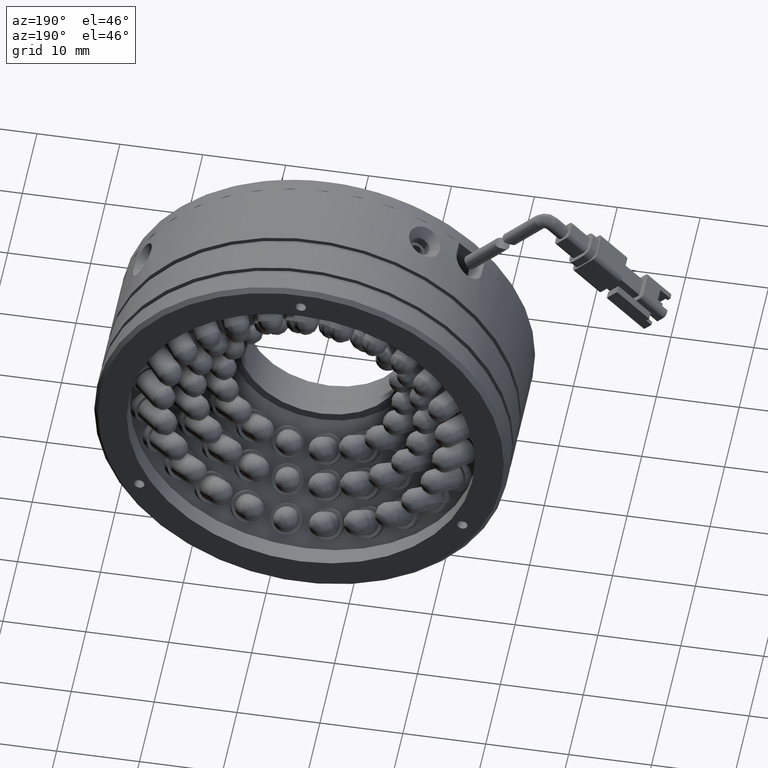
[diagram: clean part render]
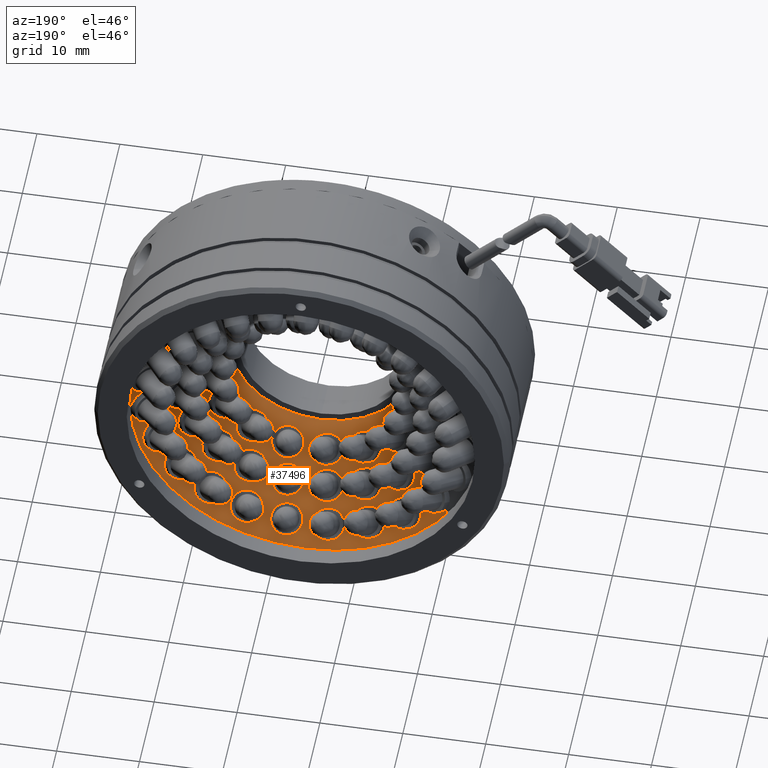
[diagram: same view with one face highlighted and labeled with its STEP entity id]
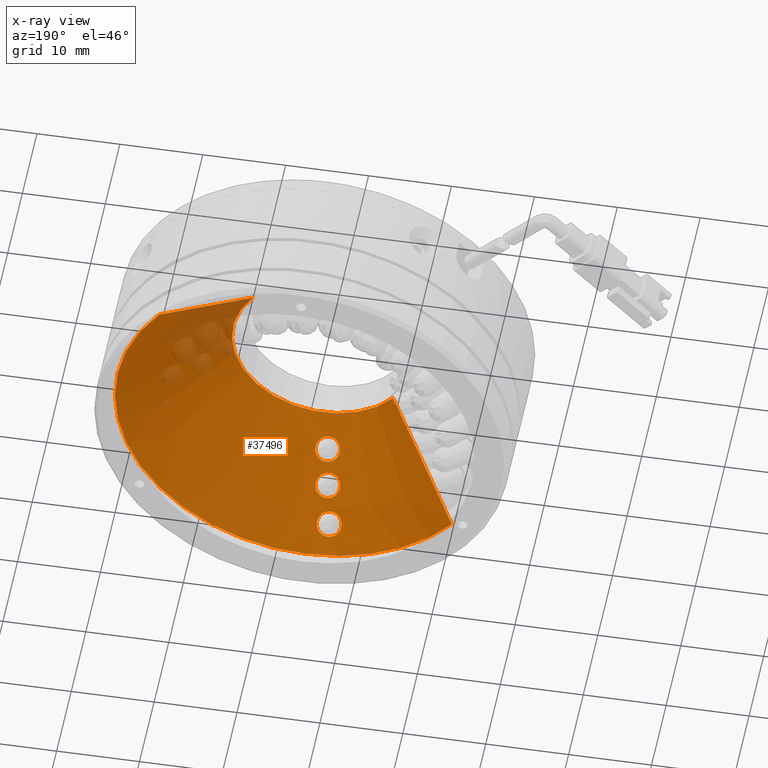
[diagram: x-ray of the same camera — body ghosted, the highlighted face saturated]
A machine part, auxiliary view. The second image highlights one B-rep face of the part: STEP entity #37496.
The next image is the same camera in x-ray: the body ghosted, the highlighted face saturated — about 9% of this face is hidden behind the body in this view.
In plain terms, the highlighted conical surface has half-angle 45 deg.
Its self-contained STEP definition (entity closure, byte-faithful):
#1223 = CARTESIAN_POINT ( 'NONE',  ( -6.903893299589653600, 9.522866943959540400, -16.32003643880054300 ) ) ;
#1410 = CARTESIAN_POINT ( 'NONE',  ( -4.685688376004625500, 5.981003522325812200, -13.01356985442074800 ) ) ;
#2414 = FACE_BOUND ( 'NONE', #51849, .T. ) ;
#2573 = CIRCLE ( 'NONE', #27999, 23.00000000000000400 ) ;
#2798 = CARTESIAN_POINT ( 'NONE',  ( -4.025818638713078100, 15.95107685953530200, 3.557538378468061400E-016 ) ) ;
#2953 = CARTESIAN_POINT ( 'NONE',  ( -5.179058073715905800, 13.84829117187733000, -20.86544870307665900 ) ) ;
#3049 = CARTESIAN_POINT ( 'NONE',  ( -3.861347638160191700, 7.555156384415581300, -14.60326966407591300 ) ) ;
#3128 = CARTESIAN_POINT ( 'NONE',  ( -3.729495263404871300, 7.370827555104668200, -14.41676769696985400 ) ) ;
#3294 = EDGE_CURVE ( 'NONE', #28536, #39346, #29710, .T. ) ;
#3415 = CARTESIAN_POINT ( 'NONE',  ( -7.691747395787854400, 12.84791317645692400, -19.55623067914739400 ) ) ;
#4020 = DIRECTION ( 'NONE',  ( -0.0000000000000000000, -1.000000000000000000, 0.0000000000000000000 ) ) ;
#4235 = CARTESIAN_POINT ( 'NONE',  ( -4.634419998892037800, 10.78581341164830000, -17.82475205392198300 ) ) ;
#4446 = CARTESIAN_POINT ( 'NONE',  ( -4.740724137508205000, 9.189187165328892300, -16.22236531554236200 ) ) ;
#5450 = FACE_BOUND ( 'NONE', #60594, .T. ) ;
#5840 = CARTESIAN_POINT ( 'NONE',  ( -4.899968689079491600, 9.111338379033485400, -16.13684432751204400 ) ) ;
#6047 = CARTESIAN_POINT ( 'NONE',  ( -7.048488318377979000, 9.716351337790285900, -16.49057478235289800 ) ) ;
#6210 = CARTESIAN_POINT ( 'NONE',  ( -12.46778843534765400, 3.951076859535327800, -7.052173136892588600 ) ) ;
#6250 = CARTESIAN_POINT ( 'NONE',  ( -4.349601731347223500, 7.893689303797999400, -14.93910409523804200 ) ) ;
#6360 = VERTEX_POINT ( 'NONE', #51270 ) ;
#7516 = CARTESIAN_POINT ( 'NONE',  ( -21.67721003167629600, 15.95107685953530200, -14.74545292259360700 ) ) ;
#7572 = CARTESIAN_POINT ( 'NONE',  ( -7.182339294280923000, 14.25383648078230600, -21.06780059616423300 ) ) ;
#7782 = CARTESIAN_POINT ( 'NONE',  ( -5.034830033245643900, 13.66221305613546400, -20.68658524585803000 ) ) ;
#7839 = DIRECTION ( 'NONE',  ( 0.7674517996940528600, 0.0000000000000000000, 0.6411066488084172800 ) ) ;
#8037 = CARTESIAN_POINT ( 'NONE',  ( -5.811551396878159400, 12.29217952392466600, -19.25869718014167000 ) ) ;
#8237 = CARTESIAN_POINT ( 'NONE',  ( -7.816981386134939300, 13.04548789993847700, -19.73354110729124900 ) ) ;
#8322 = VERTEX_POINT ( 'NONE', #24359 ) ;
#9092 = CARTESIAN_POINT ( 'NONE',  ( -4.395549254972055000, 10.56205802471552800, -17.60715528745121000 ) ) ;
#9646 = CARTESIAN_POINT ( 'NONE',  ( -4.740724137508205000, 9.189187165328892300, -16.22236531554236200 ) ) ;
#9874 = EDGE_CURVE ( 'NONE', #39346, #28536, #12327, .T. ) ;
#10079 = CARTESIAN_POINT ( 'NONE',  ( -3.750905510806368200, 6.553187215181890400, -13.59970543286856200 ) ) ;
#10537 = ORIENTED_EDGE ( 'NONE', *, *, #40616, .F. ) ;
#10728 = CARTESIAN_POINT ( 'NONE',  ( -5.165369510792410200, 9.029476047647220200, -16.03825150704538800 ) ) ;
#10929 = CARTESIAN_POINT ( 'NONE',  ( -7.139871919112349200, 9.920532030273861300, -16.68128631574122900 ) ) ;
#11325 = CARTESIAN_POINT ( 'NONE',  ( -3.681187841003301700, 6.687688799943589200, -13.73231446352466800 ) ) ;
#12254 = EDGE_CURVE ( 'NONE', #37312, #15576, #51181, .T. ) ;
#12327 = B_SPLINE_CURVE_WITH_KNOTS ( 'NONE', 3,
 ( #46548, #52283, #46464, #46393, #46330, #46280, #46270, #46186, #46116, #46077, #46062, #45976, #45907, #45844, #45762, #45656, #45568, #45497, #45369, #45296, #45248, #45169, #45094, #44974, #44967, #44894 ),
 .UNSPECIFIED., .F., .F.,
 ( 4, 2, 2, 2, 2, 2, 2, 2, 2, 2, 2, 2, 4 ),
 ( 0.004690386888072137900, 0.004983526944766753800, 0.005276667001461370600, 0.005569807058155986500, 0.005862947114850603300, 0.006449227228239836800, 0.007035507341629071300, 0.007328647398323687200, 0.007621787455018302200, 0.007914927511712917300, 0.008208067568407532300, 0.008794347681796764100, 0.009380627795185994200 ),
 .UNSPECIFIED. ) ;
#12455 = CARTESIAN_POINT ( 'NONE',  ( -6.917501298288839500, 14.32383212186383200, -21.17645327258093600 ) ) ;
#12500 = DIRECTION ( 'NONE',  ( 0.0000000000000000000, 1.000000000000000000, 0.0000000000000000000 ) ) ;
#12668 = CARTESIAN_POINT ( 'NONE',  ( -4.944256700637084600, 13.46250445146131500, -20.49086910700983900 ) ) ;
#12808 = AXIS2_PLACEMENT_3D ( 'NONE', #2798, #12500, #7839 ) ;
#12910 = CARTESIAN_POINT ( 'NONE',  ( -6.092354303274158100, 12.24201041840192000, -19.18016701119013200 ) ) ;
#13110 = CARTESIAN_POINT ( 'NONE',  ( -7.889027374870192200, 13.25335185872082800, -19.93133246141935200 ) ) ;
#13494 = ORIENTED_EDGE ( 'NONE', *, *, #12254, .F. ) ;
#13739 = CARTESIAN_POINT ( 'NONE',  ( -6.284999043038574500, 11.05108123781996300, -17.95868713070608200 ) ) ;
#13842 = CARTESIAN_POINT ( 'NONE',  ( -5.914328558703435800, 6.151117880901672700, -13.06424943300809200 ) ) ;
#13952 = CARTESIAN_POINT ( 'NONE',  ( -4.268137825042720700, 10.37398959796971500, -17.42124827584677900 ) ) ;
#14064 = CARTESIAN_POINT ( 'NONE',  ( -4.043332329046160500, 7.719669205247742900, -14.76875533396046200 ) ) ;
#14506 = VECTOR ( 'NONE', #59906, 1000.000000000000100 ) ;
#14658 = EDGE_LOOP ( 'NONE', ( #13494, #51165, #45352, #10537 ) ) ;
#15066 = ORIENTED_EDGE ( 'NONE', *, *, #44474, .T. ) ;
#15095 = VERTEX_POINT ( 'NONE', #46176 ) ;
#15099 = CARTESIAN_POINT ( 'NONE',  ( -3.964649588876593800, 6.318700729867984500, -13.36765002483724300 ) ) ;
#15211 = CARTESIAN_POINT ( 'NONE',  ( 13.62557275425014500, 15.95107685953530200, 14.74545292259360500 ) ) ;
#15252 = FACE_OUTER_BOUND ( 'NONE', #14658, .T. ) ;
#15550 = CARTESIAN_POINT ( 'NONE',  ( -5.449711756166301800, 8.989168016935435500, -15.97505881468981700 ) ) ;
#15576 = VERTEX_POINT ( 'NONE', #23381 ) ;
#15741 = CARTESIAN_POINT ( 'NONE',  ( -7.175508279177225100, 10.12898589083178900, -16.88668205550550300 ) ) ;
#16329 = CARTESIAN_POINT ( 'NONE',  ( -4.974299580456101200, 5.940214520695897200, -12.95591908886681100 ) ) ;
#17260 = CARTESIAN_POINT ( 'NONE',  ( -6.633580241132909400, 14.35608177515700300, -21.24578606195403900 ) ) ;
#17470 = CARTESIAN_POINT ( 'NONE',  ( -4.909887701304897200, 13.25482332272634000, -20.28449084874745300 ) ) ;
#17718 = CARTESIAN_POINT ( 'NONE',  ( -6.382873161934800700, 12.23475645432764800, -19.13933654430377400 ) ) ;
#17745 = EDGE_CURVE ( 'NONE', #37312, #8322, #43552, .T. ) ;
#17916 = CARTESIAN_POINT ( 'NONE',  ( -7.904191398735573400, 13.45986948159289100, -20.13875325477247800 ) ) ;
#18552 = CARTESIAN_POINT ( 'NONE',  ( -6.004876285155424900, 11.09967461808836500, -18.04062655658942700 ) ) ;
#18767 = CARTESIAN_POINT ( 'NONE',  ( -4.194276189355554700, 10.17099209931373600, -17.21909309275463700 ) ) ;
#20321 = VECTOR ( 'NONE', #48682, 1000.000000000000100 ) ;
#20366 = CARTESIAN_POINT ( 'NONE',  ( -5.744197326242289000, 8.992150400645158500, -15.94905816358078000 ) ) ;
#20575 = CARTESIAN_POINT ( 'NONE',  ( -7.143160298824717800, 10.40178202279046700, -17.17007439156078200 ) ) ;
#22106 = CARTESIAN_POINT ( 'NONE',  ( -6.339314330932728200, 14.34961009787408900, -21.27332154806864400 ) ) ;
#22318 = CARTESIAN_POINT ( 'NONE',  ( -4.944517135282434400, 12.97777623459180200, -20.00563642382854500 ) ) ;
#22468 = ORIENTED_EDGE ( 'NONE', *, *, #47111, .T. ) ;
#22569 = CARTESIAN_POINT ( 'NONE',  ( -6.772788059882447700, 12.28468654918450800, -19.13842504088981800 ) ) ;
#22783 = CARTESIAN_POINT ( 'NONE',  ( -7.811342813239889400, 13.79037900606676100, -20.49292048607776100 ) ) ;
#23209 = CARTESIAN_POINT ( 'NONE',  ( -6.539224784503248100, 10.96671950923384600, -17.83964942618959500 ) ) ;
#23381 = CARTESIAN_POINT ( 'NONE',  ( -21.67721003167629600, 15.95107685953529900, -14.74545292259360500 ) ) ;
#23417 = CARTESIAN_POINT ( 'NONE',  ( -5.714283992583450100, 11.10989379305590900, -18.08041276295890000 ) ) ;
#23632 = CARTESIAN_POINT ( 'NONE',  ( -4.177817503631191100, 9.963989893164200100, -17.01223779730262100 ) ) ;
#24299 = VERTEX_POINT ( 'NONE', #9646 ) ;
#24359 = CARTESIAN_POINT ( 'NONE',  ( 4.416151157921502700, 3.951076859535327800, 7.052173136892588600 ) ) ;
#24626 = ORIENTED_EDGE ( 'NONE', *, *, #3294, .T. ) ;
#25222 = CARTESIAN_POINT ( 'NONE',  ( -6.226300963865360100, 9.086347687198502500, -15.98532769656492100 ) ) ;
#25313 = DIRECTION ( 'NONE',  ( -0.0000000000000000000, -1.000000000000000000, 0.0000000000000000000 ) ) ;
#25431 = CARTESIAN_POINT ( 'NONE',  ( -6.896383262260448200, 10.75552505013300800, -17.57188984345805900 ) ) ;
#26067 = VERTEX_POINT ( 'NONE', #39052 ) ;
#26934 = CARTESIAN_POINT ( 'NONE',  ( -5.857081792587138100, 14.25930137937491400, -21.23003282243253400 ) ) ;
#27156 = CARTESIAN_POINT ( 'NONE',  ( -5.195627994254310900, 12.60747210206838200, -19.62181936542534200 ) ) ;
#27225 = B_SPLINE_CURVE_WITH_KNOTS ( 'NONE', 3,
 ( #56568, #23209, #42441, #13739, #47232, #18552, #52015, #23417, #56769, #28224, #61566, #33042, #4235, #37842, #9092, #42644, #13952, #47425, #18767, #52222, #23632, #56989, #28442, #61780, #33252, #4446 ),
 .UNSPECIFIED., .F., .F.,
 ( 4, 2, 2, 2, 2, 2, 2, 2, 2, 2, 2, 2, 4 ),
 ( 5.818439421673296400E-018, 0.0002931138311211362300, 0.0005862276622422667000, 0.0008793414933633971800, 0.001172455324484527600, 0.001758682986726786100, 0.002344910648969044700, 0.002638024480090177800, 0.002931138311211311700, 0.003224252142332445200, 0.003517365973453578800, 0.004103593635695835400, 0.004689821297938091100 ),
 .UNSPECIFIED. ) ;
#27407 = CARTESIAN_POINT ( 'NONE',  ( -7.303326741353038700, 12.50228595246581900, -19.27519288934959400 ) ) ;
#27452 = CARTESIAN_POINT ( 'NONE',  ( -4.187019638051451100, 7.813846326285527300, -14.86206753549026200 ) ) ;
#27623 = CARTESIAN_POINT ( 'NONE',  ( -7.495278097952261300, 14.11081389004710800, -20.87403833574545700 ) ) ;
#27999 = AXIS2_PLACEMENT_3D ( 'NONE', #32816, #4020, #37606 ) ;
#28224 = CARTESIAN_POINT ( 'NONE',  ( -5.323228146817144500, 11.07022420569604100, -18.07366828434828000 ) ) ;
#28442 = CARTESIAN_POINT ( 'NONE',  ( -4.269667697302464800, 9.621697030982149500, -16.66911906794521400 ) ) ;
#28536 = VERTEX_POINT ( 'NONE', #6250 ) ;
#29173 = CARTESIAN_POINT ( 'NONE',  ( -4.097888079640067200, 6.216906769189755300, -13.26580152452418000 ) ) ;
#29588 = CARTESIAN_POINT ( 'NONE',  ( -3.620014589097691800, 6.961450653314347600, -14.00452142078471100 ) ) ;
#29710 = B_SPLINE_CURVE_WITH_KNOTS ( 'NONE', 3,
 ( #59766, #51929, #27452, #14064, #52767, #3049, #32327, #3128, #54802, #60677, #29588, #11325, #10079, #46525, #15099, #29173, #49405, #44006, #43807, #30421, #1410, #16329, #53604, #33568, #51241, #37526 ),
 .UNSPECIFIED., .F., .F.,
 ( 4, 2, 2, 2, 2, 2, 2, 2, 2, 2, 2, 2, 4 ),
 ( 3.004629197474318500E-018, 0.0002931491805045106800, 0.0005862983610090197300, 0.0008794475415135286800, 0.001172596722018037700, 0.001758895083027053900, 0.002345193444036069800, 0.002638342624540578700, 0.002931491805045087900, 0.003224640985549597200, 0.003517790166054106500, 0.004104088527063122000, 0.004690386888072137900 ),
 .UNSPECIFIED. ) ;
#29808 = CARTESIAN_POINT ( 'NONE',  ( -4.740724137508205000, 9.189187165328892300, -16.22236531554236200 ) ) ;
#30024 = CARTESIAN_POINT ( 'NONE',  ( -6.720908215024331300, 9.346690874583050100, -16.17292048971470200 ) ) ;
#30238 = CARTESIAN_POINT ( 'NONE',  ( -6.616068230969491800, 10.92863630018029000, -17.78997612397888500 ) ) ;
#30421 = CARTESIAN_POINT ( 'NONE',  ( -4.593292679828296700, 6.001656313802270000, -13.03854516760922900 ) ) ;
#31555 = CARTESIAN_POINT ( 'NONE',  ( -7.341192347505915100, 14.18542060189126100, -20.97392789487884800 ) ) ;
#31761 = CARTESIAN_POINT ( 'NONE',  ( -5.361968637347000100, 14.01568697477283900, -21.02250892555364800 ) ) ;
#31982 = CARTESIAN_POINT ( 'NONE',  ( -5.478562578626906500, 12.42262391849485000, -19.41727787086335200 ) ) ;
#32204 = CARTESIAN_POINT ( 'NONE',  ( -7.637815380809919400, 12.78416796394786600, -19.50147588679976400 ) ) ;
#32327 = CARTESIAN_POINT ( 'NONE',  ( -3.811853613629525600, 7.495923892524334800, -14.54333463927256200 ) ) ;
#32816 = CARTESIAN_POINT ( 'NONE',  ( -4.025818638713078100, 15.95107685953529900, 3.557538378468061400E-016 ) ) ;
#33042 = CARTESIAN_POINT ( 'NONE',  ( -4.788808131639187900, 10.87983440325465700, -17.91330165744984300 ) ) ;
#33252 = CARTESIAN_POINT ( 'NONE',  ( -4.586258343210755800, 9.273512190933143300, -16.31357935765262100 ) ) ;
#33568 = CARTESIAN_POINT ( 'NONE',  ( -5.560131222107171000, 6.006106195583790000, -12.96597096869272600 ) ) ;
#34537 = EDGE_LOOP ( 'NONE', ( #41556, #24626 ) ) ;
#34790 = CARTESIAN_POINT ( 'NONE',  ( -6.958264517059580700, 9.586293126136068200, -16.37474707348661700 ) ) ;
#35392 = CARTESIAN_POINT ( 'NONE',  ( -7.341192347505915100, 14.18542060189126100, -20.97392789487884800 ) ) ;
#36013 = EDGE_CURVE ( 'NONE', #15095, #60842, #60652, .T. ) ;
#36557 = CARTESIAN_POINT ( 'NONE',  ( -5.124766130462307800, 13.78764971614531200, -20.80761479347214800 ) ) ;
#36804 = CARTESIAN_POINT ( 'NONE',  ( -5.638163354904353500, 12.34778622067803300, -19.32978750122058600 ) ) ;
#37006 = CARTESIAN_POINT ( 'NONE',  ( -7.781089173935653100, 12.97845804725406700, -19.67218943206584600 ) ) ;
#37312 = VERTEX_POINT ( 'NONE', #6210 ) ;
#37496 = ADVANCED_FACE ( 'NONE', ( #15252, #5450, #2414, #51913 ), #45924, .F. ) ;
#37526 = CARTESIAN_POINT ( 'NONE',  ( -5.914328558703435800, 6.151117880901672700, -13.06424943300809200 ) ) ;
#37606 = DIRECTION ( 'NONE',  ( -0.7674517996940528600, 0.0000000000000000000, -0.6411066488084172800 ) ) ;
#37842 = CARTESIAN_POINT ( 'NONE',  ( -4.450280040122621900, 10.62170077097710100, -17.66562680227806200 ) ) ;
#39052 = CARTESIAN_POINT ( 'NONE',  ( 13.62557275425014100, 15.95107685953529900, 14.74545292259360400 ) ) ;
#39092 = ORIENTED_EDGE ( 'NONE', *, *, #36013, .T. ) ;
#39346 = VERTEX_POINT ( 'NONE', #13842 ) ;
#39398 = CARTESIAN_POINT ( 'NONE',  ( -5.073141678877259000, 9.052635897721165400, -16.06770514703533700 ) ) ;
#39612 = CARTESIAN_POINT ( 'NONE',  ( -7.084831866414376100, 9.783218602151924500, -16.55184780939822500 ) ) ;
#40616 = EDGE_CURVE ( 'NONE', #15576, #26067, #2573, .T. ) ;
#41158 = CARTESIAN_POINT ( 'NONE',  ( -7.009546017064594500, 14.30433478404197300, -21.14396538141120300 ) ) ;
#41374 = CARTESIAN_POINT ( 'NONE',  ( -4.998702422038393300, 13.59721591329429700, -20.62321842842848700 ) ) ;
#41556 = ORIENTED_EDGE ( 'NONE', *, *, #9874, .T. ) ;
#41622 = CARTESIAN_POINT ( 'NONE',  ( -5.903838642963893200, 12.27060444865603200, -19.22827204373480800 ) ) ;
#41824 = CARTESIAN_POINT ( 'NONE',  ( -7.871105557102841200, 13.18298606640098000, -19.86313477827788200 ) ) ;
#42441 = CARTESIAN_POINT ( 'NONE',  ( -6.457568952500621700, 10.99869016822498600, -17.88326361756545100 ) ) ;
#42644 = CARTESIAN_POINT ( 'NONE',  ( -4.304723488442032700, 10.43830267962468200, -17.48505760391672900 ) ) ;
#43552 = CIRCLE ( 'NONE', #58612, 11.00000000000000200 ) ;
#43807 = CARTESIAN_POINT ( 'NONE',  ( -4.415828525135296400, 6.056331203922434600, -13.09975749785321000 ) ) ;
#44006 = CARTESIAN_POINT ( 'NONE',  ( -4.329891104413355200, 6.090844589834836700, -13.13649363305627900 ) ) ;
#44232 = CARTESIAN_POINT ( 'NONE',  ( -5.353861630901468200, 8.997807585686187400, -15.99196785731877100 ) ) ;
#44448 = CARTESIAN_POINT ( 'NONE',  ( -7.158253402964438900, 9.990865385168083500, -16.74939588264237900 ) ) ;
#44474 = EDGE_CURVE ( 'NONE', #24299, #6360, #57234, .T. ) ;
#44894 = CARTESIAN_POINT ( 'NONE',  ( -4.349601731347223500, 7.893689303797999400, -14.93910409523804200 ) ) ;
#44967 = CARTESIAN_POINT ( 'NONE',  ( -4.518651456789040600, 7.968706219424297500, -15.01047472410963300 ) ) ;
#44974 = CARTESIAN_POINT ( 'NONE',  ( -4.705253792437755300, 8.020602011587062200, -15.05543734126860600 ) ) ;
#45094 = CARTESIAN_POINT ( 'NONE',  ( -5.093706057232754600, 8.075196205175862100, -15.08760550250462500 ) ) ;
#45169 = CARTESIAN_POINT ( 'NONE',  ( -5.291793321887452000, 8.077410811809837600, -15.07452899156407400 ) ) ;
#45248 = CARTESIAN_POINT ( 'NONE',  ( -5.579962724499744700, 8.042254103170488800, -15.01125581370456400 ) ) ;
#45296 = CARTESIAN_POINT ( 'NONE',  ( -5.672139718066612900, 8.024428952528355200, -14.98345749595902300 ) ) ;
#45352 = ORIENTED_EDGE ( 'NONE', *, *, #55468, .T. ) ;
#45369 = CARTESIAN_POINT ( 'NONE',  ( -5.849050287668608100, 7.976913338890924800, -14.91509358230036700 ) ) ;
#45497 = CARTESIAN_POINT ( 'NONE',  ( -5.934648736129017400, 7.946790779813925500, -14.87396905726577000 ) ) ;
#45568 = CARTESIAN_POINT ( 'NONE',  ( -6.092872316076174000, 7.875945094975564100, -14.78127642724456300 ) ) ;
#45656 = CARTESIAN_POINT ( 'NONE',  ( -6.165502152948857200, 7.835444177695964500, -14.72995565782306000 ) ) ;
#45750 = LINE ( 'NONE', #15211, #20321 ) ;
#45762 = CARTESIAN_POINT ( 'NONE',  ( -6.297913681046163800, 7.744096651794418300, -14.61767654086559000 ) ) ;
#45844 = CARTESIAN_POINT ( 'NONE',  ( -6.357782885179418000, 7.692876916236857100, -14.55631337764122100 ) ) ;
#45907 = CARTESIAN_POINT ( 'NONE',  ( -6.510067273110038000, 7.529536534031668900, -14.36574345921322800 ) ) ;
#45924 = CONICAL_SURFACE ( 'NONE', #12808, 23.00000000000001100, 0.7853981633974499400 ) ;
#45950 = CARTESIAN_POINT ( 'NONE',  ( -6.729309891855793400, 14.34964350219729000, -21.22732021972463900 ) ) ;
#45976 = CARTESIAN_POINT ( 'NONE',  ( -6.579117820913783300, 7.403268626111933600, -14.22496196178570700 ) ) ;
#46062 = CARTESIAN_POINT ( 'NONE',  ( -6.639603721603685400, 7.138076129103147600, -13.94425001516212200 ) ) ;
#46077 = CARTESIAN_POINT ( 'NONE',  ( -6.631665271224450800, 6.996395847763239800, -13.80148439171502500 ) ) ;
#46116 = CARTESIAN_POINT ( 'NONE',  ( -6.563344148812915600, 6.789912497842809800, -13.60420676706819300 ) ) ;
#46160 = CARTESIAN_POINT ( 'NONE',  ( -4.926249969561435000, 13.39286589926220500, -20.42194871264576500 ) ) ;
#46176 = CARTESIAN_POINT ( 'NONE',  ( -5.478562578626906500, 12.42262391849485000, -19.41727787086335200 ) ) ;
#46186 = CARTESIAN_POINT ( 'NONE',  ( -6.530737910134528000, 6.720732636155414500, -13.53992871697683500 ) ) ;
#46202 = CARTESIAN_POINT ( 'NONE',  ( -5.555998272092963000, 12.38194365080229700, -19.37069039412338300 ) ) ;
#46270 = CARTESIAN_POINT ( 'NONE',  ( -6.448931618024181100, 6.588503874015825300, -13.42046232718240600 ) ) ;
#46280 = CARTESIAN_POINT ( 'NONE',  ( -6.399770523541186600, 6.524989880930238700, -13.36479520752733000 ) ) ;
#46330 = CARTESIAN_POINT ( 'NONE',  ( -6.284770182950485800, 6.403434282471824400, -13.26142307346583800 ) ) ;
#46393 = CARTESIAN_POINT ( 'NONE',  ( -6.218944797190437700, 6.345719975274926500, -13.21403604200344600 ) ) ;
#46406 = CARTESIAN_POINT ( 'NONE',  ( -6.188167628379267700, 12.23485604907349800, -19.16241105249303800 ) ) ;
#46464 = CARTESIAN_POINT ( 'NONE',  ( -6.076087078202923500, 6.241138606293957600, -13.13111675475556700 ) ) ;
#46525 = CARTESIAN_POINT ( 'NONE',  ( -3.904358701015903300, 6.375236310864766100, -13.42370456314603700 ) ) ;
#46548 = CARTESIAN_POINT ( 'NONE',  ( -5.914328558703435800, 6.151117880901672700, -13.06424943300809200 ) ) ;
#46616 = CARTESIAN_POINT ( 'NONE',  ( -7.905389856049818100, 13.39140542293038100, -20.06878133403602500 ) ) ;
#47111 = EDGE_CURVE ( 'NONE', #6360, #24299, #27225, .T. ) ;
#47232 = CARTESIAN_POINT ( 'NONE',  ( -6.193021898589296200, 11.07162622571334500, -17.99074246614024000 ) ) ;
#47425 = CARTESIAN_POINT ( 'NONE',  ( -4.212756499934035200, 10.24029482468120900, -17.28822818764328800 ) ) ;
#48682 = DIRECTION ( 'NONE',  ( 0.5426703717974856700, 0.7071067811865463500, 0.4533308588362150400 ) ) ;
#49011 = CARTESIAN_POINT ( 'NONE',  ( -5.644586924887197400, 8.986225245584089200, -15.95353192142520300 ) ) ;
#49221 = CARTESIAN_POINT ( 'NONE',  ( -7.174746833164094000, 10.19754773154868500, -16.95657835475900700 ) ) ;
#49405 = CARTESIAN_POINT ( 'NONE',  ( -4.170922154121695000, 6.171256379992454900, -13.21962633936507600 ) ) ;
#50745 = CARTESIAN_POINT ( 'NONE',  ( -6.438877148668146000, 14.35617044011891300, -21.26886904253871400 ) ) ;
#50929 = CARTESIAN_POINT ( 'NONE',  ( -4.911168568102439700, 13.18566279174557100, -20.21521271959098700 ) ) ;
#50979 = CARTESIAN_POINT ( 'NONE',  ( -5.478562578626906500, 12.42262391849485000, -19.41727787086335200 ) ) ;
#51165 = ORIENTED_EDGE ( 'NONE', *, *, #17745, .T. ) ;
#51181 = LINE ( 'NONE', #7516, #14506 ) ;
#51196 = CARTESIAN_POINT ( 'NONE',  ( -6.482351253490321600, 12.24204506002348800, -19.13415987778158800 ) ) ;
#51241 = CARTESIAN_POINT ( 'NONE',  ( -5.746073486931289900, 6.066195029864179100, -13.00276608876127900 ) ) ;
#51270 = CARTESIAN_POINT ( 'NONE',  ( -6.616068230969491800, 10.92863630018029000, -17.78997612397888500 ) ) ;
#51400 = CARTESIAN_POINT ( 'NONE',  ( -7.871330900185373700, 13.66359942459432700, -20.35246812762187200 ) ) ;
#51849 = EDGE_LOOP ( 'NONE', ( #15066, #22468 ) ) ;
#51913 = FACE_BOUND ( 'NONE', #34537, .T. ) ;
#51929 = CARTESIAN_POINT ( 'NONE',  ( -4.265074237840245500, 7.856179678556404900, -14.90341767011806000 ) ) ;
#52015 = CARTESIAN_POINT ( 'NONE',  ( -5.909123964712570400, 11.10729667538488200, -18.05854610857650800 ) ) ;
#52222 = CARTESIAN_POINT ( 'NONE',  ( -4.176990788074103700, 10.03321438553987100, -17.08147047114961500 ) ) ;
#52283 = CARTESIAN_POINT ( 'NONE',  ( -5.998453476251492100, 6.193577984874933900, -13.09499014834501900 ) ) ;
#52767 = CARTESIAN_POINT ( 'NONE',  ( -3.977094486616277200, 7.667186978577714900, -14.71614486934333900 ) ) ;
#53604 = CARTESIAN_POINT ( 'NONE',  ( -5.172365020689105600, 5.942813098448218600, -12.94246379925082900 ) ) ;
#53828 = CARTESIAN_POINT ( 'NONE',  ( -6.035143161775055300, 9.031070673026643900, -15.95511770793039700 ) ) ;
#53911 = CARTESIAN_POINT ( 'NONE',  ( -4.025818638713078100, 3.951076859535329600, 3.557538378468061400E-016 ) ) ;
#54029 = CARTESIAN_POINT ( 'NONE',  ( -7.083936440902518500, 10.52912134459842600, -17.31036227187919300 ) ) ;
#54802 = CARTESIAN_POINT ( 'NONE',  ( -3.696669981460252200, 7.304492998514502000, -14.34966270969144000 ) ) ;
#55468 = EDGE_CURVE ( 'NONE', #8322, #26067, #45750, .T. ) ;
#55518 = CARTESIAN_POINT ( 'NONE',  ( -6.048390350933933000, 14.31111565515944900, -21.26493475259436400 ) ) ;
#55716 = CARTESIAN_POINT ( 'NONE',  ( -5.005147304006219300, 12.84553215345228900, -19.87059742468788000 ) ) ;
#55959 = CARTESIAN_POINT ( 'NONE',  ( -6.963441774400894100, 12.34204296096465100, -19.16781886257454600 ) ) ;
#56145 = CARTESIAN_POINT ( 'NONE',  ( -7.622439714143275100, 14.01505695550849900, -20.75497635974390000 ) ) ;
#56524 = B_SPLINE_CURVE_WITH_KNOTS ( 'NONE', 3,
 ( #31555, #60086, #7572, #41158, #12455, #45950, #17260, #50745, #22106, #55518, #26934, #60293, #31761, #2953, #36557, #7782, #41374, #12668, #46160, #17470, #50929, #22318, #55716, #27156, #60512, #31982 ),
 .UNSPECIFIED., .F., .F.,
 ( 4, 2, 2, 2, 2, 2, 2, 2, 2, 2, 2, 2, 4 ),
 ( 1.734723475976807100E-018, 0.0002930939827101237500, 0.0005861879654202457600, 0.0008792819481303677100, 0.001172375930840489800, 0.001758563896260731100, 0.002344751861680972600, 0.002637845844391088500, 0.002930939827101204400, 0.003224033809811319800, 0.003517127792521435300, 0.004103315757941674400, 0.004689503723361913200 ),
 .UNSPECIFIED. ) ;
#56568 = CARTESIAN_POINT ( 'NONE',  ( -6.616068230969491800, 10.92863630018029000, -17.78997612397888500 ) ) ;
#56769 = CARTESIAN_POINT ( 'NONE',  ( -5.614607498809342600, 11.10466725589605600, -18.08418945570958800 ) ) ;
#56989 = CARTESIAN_POINT ( 'NONE',  ( -4.209837627641166900, 9.755281934018134000, -16.80321278045786200 ) ) ;
#57234 = B_SPLINE_CURVE_WITH_KNOTS ( 'NONE', 3,
 ( #29808, #58352, #5840, #39398, #10728, #44232, #15550, #49011, #20366, #53828, #25222, #58565, #30024, #1223, #34790, #6047, #39612, #10929, #44448, #15741, #49221, #20575, #54029, #25431, #58768, #30238 ),
 .UNSPECIFIED., .F., .F.,
 ( 4, 2, 2, 2, 2, 2, 2, 2, 2, 2, 2, 2, 4 ),
 ( 0.004689821297938091100, 0.004982939203684659000, 0.005276057109431226900, 0.005569175015177795600, 0.005862292920924363500, 0.006448528732417499300, 0.007034764543910635100, 0.007327882449657199500, 0.007621000355403764700, 0.007914118261150328300, 0.008207236166896893600, 0.008793471978390022400, 0.009379707789883151200 ),
 .UNSPECIFIED. ) ;
#58352 = CARTESIAN_POINT ( 'NONE',  ( -4.817958108284631900, 9.147024066418472500, -16.17675766049625400 ) ) ;
#58565 = CARTESIAN_POINT ( 'NONE',  ( -6.567424000374209000, 9.243379017284265600, -16.09363884063517600 ) ) ;
#58612 = AXIS2_PLACEMENT_3D ( 'NONE', #53911, #25313, #58657 ) ;
#58657 = DIRECTION ( 'NONE',  ( -0.7674517996940528600, 0.0000000000000000000, -0.6411066488084172800 ) ) ;
#58768 = CARTESIAN_POINT ( 'NONE',  ( -6.769757260329724200, 10.85246882327078800, -17.69062813852337600 ) ) ;
#59766 = CARTESIAN_POINT ( 'NONE',  ( -4.349601731347223500, 7.893689303797999400, -14.93910409523804200 ) ) ;
#59906 = DIRECTION ( 'NONE',  ( -0.5426703717974856700, 0.7071067811865463500, -0.4533308588362151600 ) ) ;
#60086 = CARTESIAN_POINT ( 'NONE',  ( -7.264150117868905600, 14.22272364522726000, -21.02387225592977800 ) ) ;
#60293 = CARTESIAN_POINT ( 'NONE',  ( -5.515629607271148600, 14.11236567999624800, -21.10942903096469400 ) ) ;
#60512 = CARTESIAN_POINT ( 'NONE',  ( -5.323692489450406700, 12.50398377211364900, -19.51045204357725300 ) ) ;
#60594 = EDGE_LOOP ( 'NONE', ( #39092, #61825 ) ) ;
#60652 = B_SPLINE_CURVE_WITH_KNOTS ( 'NONE', 3,
 ( #50979, #46202, #36804, #8037, #41622, #12910, #46406, #17718, #51196, #22569, #55959, #27407, #60766, #32204, #3415, #37006, #8237, #41824, #13110, #46616, #17916, #51400, #22783, #56145, #27623, #60962 ),
 .UNSPECIFIED., .F., .F.,
 ( 4, 2, 2, 2, 2, 2, 2, 2, 2, 2, 2, 2, 4 ),
 ( 0.004689503723361913200, 0.004982600162094147400, 0.005275696600826380700, 0.005568793039558614900, 0.005861889478290848200, 0.006448082355755316600, 0.007034275233219785100, 0.007327371671952021000, 0.007620468110684256900, 0.007913564549416492900, 0.008206660988148727100, 0.008792853865613207600, 0.009379046743077686400 ),
 .UNSPECIFIED. ) ;
#60677 = CARTESIAN_POINT ( 'NONE',  ( -3.627924505983405100, 7.103507581398558200, -14.14692161013723900 ) ) ;
#60766 = CARTESIAN_POINT ( 'NONE',  ( -7.456068618595589100, 12.60678118609968300, -19.35433841645140200 ) ) ;
#60842 = VERTEX_POINT ( 'NONE', #35392 ) ;
#60962 = CARTESIAN_POINT ( 'NONE',  ( -7.341192347505915100, 14.18542060189126100, -20.97392789487884800 ) ) ;
#61485 = EDGE_CURVE ( 'NONE', #60842, #15095, #56524, .T. ) ;
#61566 = CARTESIAN_POINT ( 'NONE',  ( -5.131449080516961900, 11.02129008882725200, -18.03713862157387000 ) ) ;
#61780 = CARTESIAN_POINT ( 'NONE',  ( -4.458749608534210700, 9.379642467028022100, -16.42314691705343300 ) ) ;
#61825 = ORIENTED_EDGE ( 'NONE', *, *, #61485, .T. ) ;